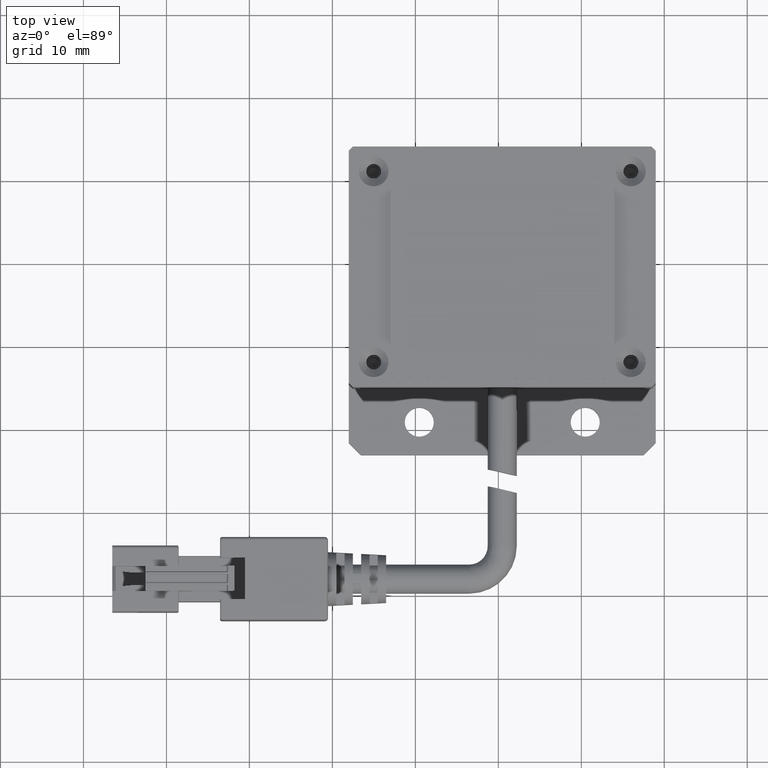
[diagram: clean part render]
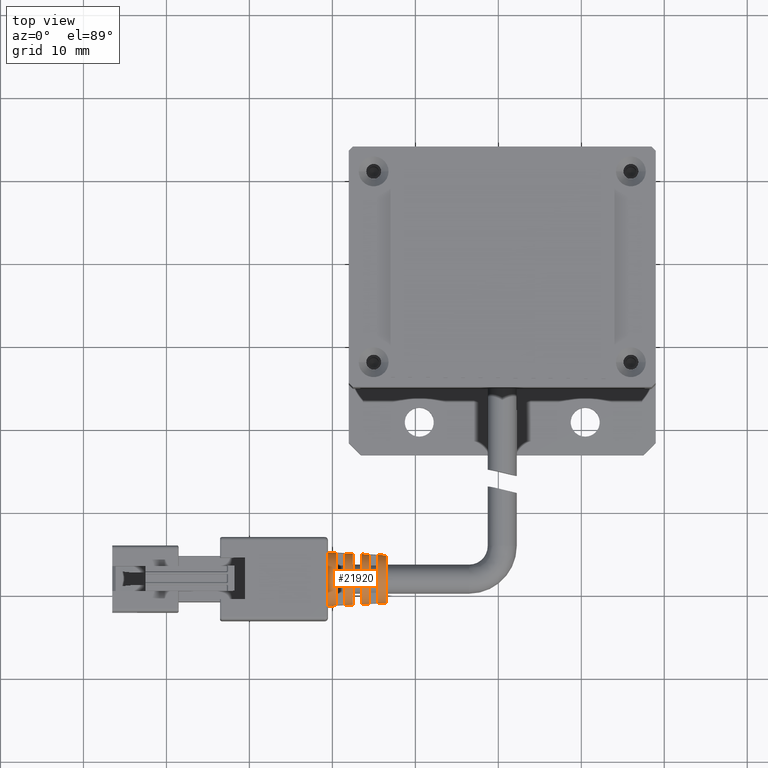
[diagram: same view with one face highlighted and labeled with its STEP entity id]
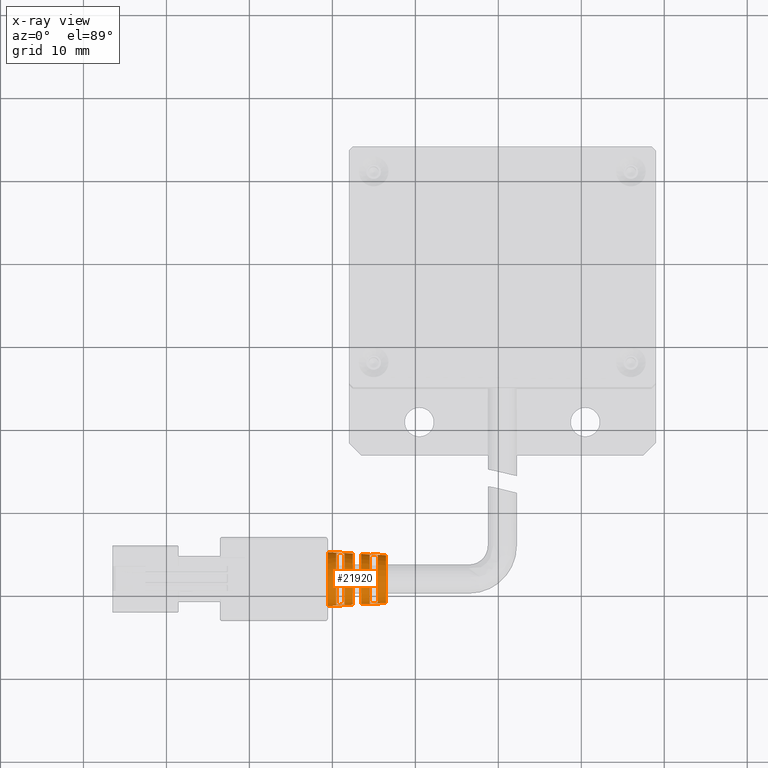
[diagram: x-ray of the same camera — body ghosted, the highlighted face saturated]
A machine part, top view. The second image highlights one B-rep face of the part: STEP entity #21920.
The next image is the same camera in x-ray: the body ghosted, the highlighted face saturated — about 0% of this face is hidden behind the body in this view.
In plain terms, the highlighted conical surface has half-angle 3 deg.
Its self-contained STEP definition (entity closure, byte-faithful):
#56 = AXIS2_PLACEMENT_3D ( 'NONE', #21622, #21542, #19377 ) ;
#155 = CARTESIAN_POINT ( 'NONE',  ( -20.52940053432780200, -34.80364642994796000, 3.999999999983631300 ) ) ;
#263 = ORIENTED_EDGE ( 'NONE', *, *, #4382, .T. ) ;
#307 = ORIENTED_EDGE ( 'NONE', *, *, #11392, .T. ) ;
#885 = CARTESIAN_POINT ( 'NONE',  ( -18.52940053454562600, -38.05364642993505700, 3.999999999983630400 ) ) ;
#931 = EDGE_CURVE ( 'NONE', #14083, #19856, #18369, .T. ) ;
#947 = CARTESIAN_POINT ( 'NONE',  ( -19.19606691330625700, -41.17665669055632100, 4.599999999983630500 ) ) ;
#1091 = EDGE_CURVE ( 'NONE', #15971, #14452, #26383, .T. ) ;
#1303 = EDGE_LOOP ( 'NONE', ( #13616, #10369, #3724, #22207 ) ) ;
#1477 = EDGE_CURVE ( 'NONE', #14463, #13560, #5836, .T. ) ;
#1509 = VECTOR ( 'NONE', #22633, 1000.000000000000200 ) ;
#1877 = CARTESIAN_POINT ( 'NONE',  ( -20.52940053432780200, -38.05364642993505700, 3.999999999983630400 ) ) ;
#2147 = CIRCLE ( 'NONE', #6506, 3.249999999999010600 ) ;
#2165 = EDGE_CURVE ( 'NONE', #15971, #14463, #15660, .T. ) ;
#2215 = DIRECTION ( 'NONE',  ( -0.9986295347545816000, 0.05233595624279531500, 1.094872672590912000E-017 ) ) ;
#2322 = ORIENTED_EDGE ( 'NONE', *, *, #14025, .T. ) ;
#2340 = CIRCLE ( 'NONE', #16407, 3.092776662151075500 ) ;
#2394 = CARTESIAN_POINT ( 'NONE',  ( -17.19606688121181600, -38.65364642993505800, 7.016210776912242200 ) ) ;
#2400 = EDGE_CURVE ( 'NONE', #8647, #8344, #26564, .T. ) ;
#2436 = AXIS2_PLACEMENT_3D ( 'NONE', #3806, #18164, #5891 ) ;
#2690 = AXIS2_PLACEMENT_3D ( 'NONE', #18407, #6139, #20473 ) ;
#2692 = CARTESIAN_POINT ( 'NONE',  ( -18.52940053455040100, -41.14107014083579400, 4.599999999983630500 ) ) ;
#2833 = CARTESIAN_POINT ( 'NONE',  ( -20.52940053455517600, -38.05364642993505700, 3.999999999983630400 ) ) ;
#2896 = B_SPLINE_CURVE_WITH_KNOTS ( 'NONE', 3,
 ( #12936, #8828, #4793, #19129 ),
 .UNSPECIFIED., .F., .F.,
 ( 4, 4 ),
 ( 4.709287019939731200E-016, 0.001001431039896518900 ),
 .UNSPECIFIED. ) ;
#2954 = DIRECTION ( 'NONE',  ( 0.0000000000000000000, -1.000000000000000000, 8.273235679558057500E-016 ) ) ;
#3128 = ORIENTED_EDGE ( 'NONE', *, *, #23431, .T. ) ;
#3129 = EDGE_CURVE ( 'NONE', #8981, #10240, #23059, .T. ) ;
#3265 = CARTESIAN_POINT ( 'NONE',  ( -17.52940053456927300, -38.05364642993505700, 3.999999999983630400 ) ) ;
#3446 = CARTESIAN_POINT ( 'NONE',  ( -17.19606688121181600, -37.45364642993506300, 7.016210776912242200 ) ) ;
#3488 = VERTEX_POINT ( 'NONE', #21882 ) ;
#3724 = ORIENTED_EDGE ( 'NONE', *, *, #20819, .T. ) ;
#3806 = CARTESIAN_POINT ( 'NONE',  ( -14.52940053458337200, -38.05364642993505700, 3.999999999983630400 ) ) ;
#4140 = LINE ( 'NONE', #155, #9613 ) ;
#4184 = ORIENTED_EDGE ( 'NONE', *, *, #8004, .T. ) ;
#4365 = CARTESIAN_POINT ( 'NONE',  ( -16.86273354202424100, -38.65364642993505800, 6.998397299985025900 ) ) ;
#4382 = EDGE_CURVE ( 'NONE', #19856, #25151, #13552, .T. ) ;
#4565 = VECTOR ( 'NONE', #7799, 1000.000000000000200 ) ;
#4793 = CARTESIAN_POINT ( 'NONE',  ( -14.86273350399157200, -35.16221848270946300, 4.599999999983629600 ) ) ;
#4908 = DIRECTION ( 'NONE',  ( 0.0000000000000000000, -1.000000000000000000, 0.0000000000000000000 ) ) ;
#5132 = CARTESIAN_POINT ( 'NONE',  ( -16.52940053453607700, -38.05364642993505700, 3.999999999983630400 ) ) ;
#5341 = DIRECTION ( 'NONE',  ( 0.0000000000000000000, -1.000000000000000000, 0.0000000000000000000 ) ) ;
#5534 = CARTESIAN_POINT ( 'NONE',  ( -16.52940053454563000, -37.45364642993506300, 6.980577619155053700 ) ) ;
#5587 = CARTESIAN_POINT ( 'NONE',  ( -15.19606684410781700, -40.96291343481343700, 4.599999999983629600 ) ) ;
#5764 = ORIENTED_EDGE ( 'NONE', *, *, #24122, .T. ) ;
#5836 = B_SPLINE_CURVE_WITH_KNOTS ( 'NONE', 3,
 ( #8599, #2394, #4365, #22920 ),
 .UNSPECIFIED., .F., .F.,
 ( 4, 4 ),
 ( 1.407150810064509900E-015, 0.001001426938980520000 ),
 .UNSPECIFIED. ) ;
#5891 = DIRECTION ( 'NONE',  ( 0.0000000000000000000, -1.000000000000000000, 0.0000000000000000000 ) ) ;
#6139 = DIRECTION ( 'NONE',  ( -1.000000000000000000, -6.162975822039154700E-033, -5.345529420184391300E-049 ) ) ;
#6194 = B_SPLINE_CURVE_WITH_KNOTS ( 'NONE', 3,
 ( #8274, #22570, #24653, #12349 ),
 .UNSPECIFIED., .F., .F.,
 ( 4, 4 ),
 ( 2.341740480690032800E-015, 0.001001423258043091700 ),
 .UNSPECIFIED. ) ;
#6249 = CARTESIAN_POINT ( 'NONE',  ( -20.52940053432780200, -34.80364642994796000, 3.999999999983631300 ) ) ;
#6506 = AXIS2_PLACEMENT_3D ( 'NONE', #2833, #17160, #4908 ) ;
#6510 = FACE_OUTER_BOUND ( 'NONE', #19061, .T. ) ;
#6742 = VERTEX_POINT ( 'NONE', #25114 ) ;
#6995 = CARTESIAN_POINT ( 'NONE',  ( -20.52940053455517600, -41.30364642993406900, 3.999999999983630400 ) ) ;
#7025 = ORIENTED_EDGE ( 'NONE', *, *, #10763, .T. ) ;
#7031 = CIRCLE ( 'NONE', #18666, 2.883145545018506200 ) ;
#7208 = DIRECTION ( 'NONE',  ( 0.0000000000000000000, -1.000000000000000000, -8.558452326718922600E-016 ) ) ;
#7224 = B_SPLINE_CURVE_WITH_KNOTS ( 'NONE', 3,
 ( #21975, #7690, #5587, #9718 ),
 .UNSPECIFIED., .F., .F.,
 ( 4, 4 ),
 ( 2.821323884305459600E-015, 0.001001431039903066600 ),
 .UNSPECIFIED. ) ;
#7270 = CARTESIAN_POINT ( 'NONE',  ( -18.52940053454754800, -34.96622271903446900, 4.599999999983630500 ) ) ;
#7300 = AXIS2_PLACEMENT_3D ( 'NONE', #1877, #22306, #10147 ) ;
#7480 = ORIENTED_EDGE ( 'NONE', *, *, #21338, .T. ) ;
#7690 = CARTESIAN_POINT ( 'NONE',  ( -14.86273350399157800, -40.94507437716065100, 4.599999999983629600 ) ) ;
#7799 = DIRECTION ( 'NONE',  ( -0.9986295347545816000, -0.05233595624279531500, -4.539420596603597400E-018 ) ) ;
#7895 = EDGE_CURVE ( 'NONE', #25151, #25237, #2340, .T. ) ;
#8004 = EDGE_CURVE ( 'NONE', #26262, #25952, #7224, .T. ) ;
#8274 = CARTESIAN_POINT ( 'NONE',  ( -19.52940053456699900, -34.91285098769622400, 4.599999999983631400 ) ) ;
#8344 = VERTEX_POINT ( 'NONE', #15050 ) ;
#8599 = CARTESIAN_POINT ( 'NONE',  ( -17.52940053456222500, -38.65364642993505800, 7.034018372034805300 ) ) ;
#8647 = VERTEX_POINT ( 'NONE', #22295 ) ;
#8665 = CARTESIAN_POINT ( 'NONE',  ( -17.52940053456927300, -34.96086976778398300, 3.999999999983631300 ) ) ;
#8828 = CARTESIAN_POINT ( 'NONE',  ( -15.19606684410781500, -35.14437942505667700, 4.599999999983630500 ) ) ;
#8981 = VERTEX_POINT ( 'NONE', #7270 ) ;
#9053 = CARTESIAN_POINT ( 'NONE',  ( -17.52940053456222500, -38.65364642993505800, 7.034018372034805300 ) ) ;
#9118 = CARTESIAN_POINT ( 'NONE',  ( -18.86273357489992400, -41.15886620670015400, 4.599999999983630500 ) ) ;
#9277 = DIRECTION ( 'NONE',  ( -1.000000000000000000, -6.162975822039154700E-033, -5.345529420184391300E-049 ) ) ;
#9613 = VECTOR ( 'NONE', #2215, 1000.000000000000200 ) ;
#9718 = CARTESIAN_POINT ( 'NONE',  ( -15.52940053455882300, -40.98074594251322400, 4.599999999983629600 ) ) ;
#9908 = VECTOR ( 'NONE', #19851, 1000.000000000000200 ) ;
#10002 = CARTESIAN_POINT ( 'NONE',  ( -20.52940053432780200, -41.30364642992215400, 3.999999999983630400 ) ) ;
#10007 = VERTEX_POINT ( 'NONE', #22313 ) ;
#10147 = DIRECTION ( 'NONE',  ( 0.0000000000000000000, -1.000000000000000000, 0.0000000000000000000 ) ) ;
#10240 = VERTEX_POINT ( 'NONE', #2692 ) ;
#10276 = CARTESIAN_POINT ( 'NONE',  ( -17.52940053456645600, -37.45364642993506300, 7.034018372035030900 ) ) ;
#10369 = ORIENTED_EDGE ( 'NONE', *, *, #2400, .T. ) ;
#10504 = AXIS2_PLACEMENT_3D ( 'NONE', #5132, #19457, #7208 ) ;
#10676 = B_SPLINE_CURVE_WITH_KNOTS ( 'NONE', 3,
 ( #25527, #9118, #947, #15280 ),
 .UNSPECIFIED., .F., .F.,
 ( 4, 4 ),
 ( 9.449387654586576900E-016, 0.001001423258045926400 ),
 .UNSPECIFIED. ) ;
#10763 = EDGE_CURVE ( 'NONE', #3488, #12827, #2896, .T. ) ;
#11041 = ORIENTED_EDGE ( 'NONE', *, *, #7895, .T. ) ;
#11392 = EDGE_CURVE ( 'NONE', #25952, #3488, #22635, .T. ) ;
#11445 = CARTESIAN_POINT ( 'NONE',  ( -13.52940053455017600, -38.05364642993505700, 3.999999999983630400 ) ) ;
#11508 = ORIENTED_EDGE ( 'NONE', *, *, #24273, .T. ) ;
#11762 = CARTESIAN_POINT ( 'NONE',  ( -15.52940053455972500, -38.05364642993505700, 3.999999999983630400 ) ) ;
#12349 = CARTESIAN_POINT ( 'NONE',  ( -18.52940053454754800, -34.96622271903446900, 4.599999999983630500 ) ) ;
#12494 = ORIENTED_EDGE ( 'NONE', *, *, #17153, .F. ) ;
#12607 = CARTESIAN_POINT ( 'NONE',  ( -16.52940053453607700, -35.01327754706861800, 3.999999999983631300 ) ) ;
#12655 = ORIENTED_EDGE ( 'NONE', *, *, #2165, .T. ) ;
#12723 = CARTESIAN_POINT ( 'NONE',  ( -16.52940053453988200, -38.65364642993505800, 6.980577619154746400 ) ) ;
#12827 = VERTEX_POINT ( 'NONE', #16250 ) ;
#12936 = CARTESIAN_POINT ( 'NONE',  ( -15.52940053455745200, -35.12654691735696100, 4.599999999983630500 ) ) ;
#13255 = FACE_BOUND ( 'NONE', #1303, .T. ) ;
#13544 = DIRECTION ( 'NONE',  ( 0.0000000000000000000, -1.000000000000000000, 0.0000000000000000000 ) ) ;
#13552 = B_SPLINE_CURVE_WITH_KNOTS ( 'NONE', 3,
 ( #5534, #17816, #3446, #19864 ),
 .UNSPECIFIED., .F., .F.,
 ( 4, 4 ),
 ( 1.952605237728863600E-015, 0.001001426938979543600 ),
 .UNSPECIFIED. ) ;
#13560 = VERTEX_POINT ( 'NONE', #12723 ) ;
#13616 = ORIENTED_EDGE ( 'NONE', *, *, #18751, .T. ) ;
#13847 = DIRECTION ( 'NONE',  ( 0.0000000000000000000, -1.000000000000000000, 0.0000000000000000000 ) ) ;
#14025 = EDGE_CURVE ( 'NONE', #25237, #25845, #4140, .T. ) ;
#14083 = VERTEX_POINT ( 'NONE', #12607 ) ;
#14452 = VERTEX_POINT ( 'NONE', #6995 ) ;
#14463 = VERTEX_POINT ( 'NONE', #9053 ) ;
#14655 = CARTESIAN_POINT ( 'NONE',  ( -17.52940053456927300, -41.14642309208613100, 3.999999999983630400 ) ) ;
#15050 = CARTESIAN_POINT ( 'NONE',  ( -19.52940053456699900, -34.91285098769622400, 4.599999999983631400 ) ) ;
#15226 = DIRECTION ( 'NONE',  ( 1.000000000000000000, 6.162975822039154700E-033, 5.345529420184391300E-049 ) ) ;
#15280 = CARTESIAN_POINT ( 'NONE',  ( -19.52940053457408000, -41.19444187217425900, 4.599999999983630500 ) ) ;
#15634 = CARTESIAN_POINT ( 'NONE',  ( -20.52940053432780200, -41.30364642992215400, 3.999999999983630400 ) ) ;
#15660 = CIRCLE ( 'NONE', #20193, 3.092776662151075500 ) ;
#15971 = VERTEX_POINT ( 'NONE', #14655 ) ;
#16250 = CARTESIAN_POINT ( 'NONE',  ( -14.52940053457772900, -35.18006446315118300, 4.599999999983629600 ) ) ;
#16407 = AXIS2_PLACEMENT_3D ( 'NONE', #21565, #9277, #23643 ) ;
#17153 = EDGE_CURVE ( 'NONE', #20139, #10007, #20810, .T. ) ;
#17160 = DIRECTION ( 'NONE',  ( 1.000000000000000000, 6.162975822039154700E-033, 5.345529420184391300E-049 ) ) ;
#17242 = CARTESIAN_POINT ( 'NONE',  ( -16.52940053454563000, -37.45364642993506300, 6.980577619155053700 ) ) ;
#17416 = FACE_BOUND ( 'NONE', #19791, .T. ) ;
#17626 = DIRECTION ( 'NONE',  ( -1.000000000000000000, -6.162975822039154700E-033, -5.345529420184391300E-049 ) ) ;
#17816 = CARTESIAN_POINT ( 'NONE',  ( -16.86273354202423700, -37.45364642993506300, 6.998397299985025900 ) ) ;
#17980 = CIRCLE ( 'NONE', #10504, 3.040368882866441200 ) ;
#18164 = DIRECTION ( 'NONE',  ( 1.000000000000000000, 6.162975822039154700E-033, 5.345529420184391300E-049 ) ) ;
#18369 = CIRCLE ( 'NONE', #56, 3.040368882866441200 ) ;
#18407 = CARTESIAN_POINT ( 'NONE',  ( -19.52940053457882300, -38.05364642993505700, 3.999999999983630400 ) ) ;
#18666 = AXIS2_PLACEMENT_3D ( 'NONE', #11445, #25837, #13544 ) ;
#18751 = EDGE_CURVE ( 'NONE', #10240, #8647, #10676, .T. ) ;
#18939 = CARTESIAN_POINT ( 'NONE',  ( -20.52940053455517600, -34.80364642993604500, 3.999999999983631300 ) ) ;
#19019 = AXIS2_PLACEMENT_3D ( 'NONE', #11762, #26168, #13847 ) ;
#19061 = EDGE_LOOP ( 'NONE', ( #3128, #5764, #22707, #263, #11041, #2322, #11508, #19400, #12655, #24056, #21154, #12494 ) ) ;
#19129 = CARTESIAN_POINT ( 'NONE',  ( -14.52940053457772900, -35.18006446315118300, 4.599999999983629600 ) ) ;
#19278 = CARTESIAN_POINT ( 'NONE',  ( -15.52940053455882300, -40.98074594251322400, 4.599999999983629600 ) ) ;
#19377 = DIRECTION ( 'NONE',  ( 0.0000000000000000000, -1.000000000000000000, 8.558452326718922600E-016 ) ) ;
#19400 = ORIENTED_EDGE ( 'NONE', *, *, #1091, .F. ) ;
#19457 = DIRECTION ( 'NONE',  ( 1.000000000000000000, 6.162975822039154700E-033, 5.345529420184391300E-049 ) ) ;
#19718 = CIRCLE ( 'NONE', #2436, 2.935553324303140400 ) ;
#19791 = EDGE_LOOP ( 'NONE', ( #4184, #307, #7025, #7480 ) ) ;
#19851 = DIRECTION ( 'NONE',  ( -0.9986295347545816000, -0.05233595624279531500, -4.539420596603597400E-018 ) ) ;
#19856 = VERTEX_POINT ( 'NONE', #17242 ) ;
#19864 = CARTESIAN_POINT ( 'NONE',  ( -17.52940053456645600, -37.45364642993506300, 7.034018372035030900 ) ) ;
#20139 = VERTEX_POINT ( 'NONE', #26303 ) ;
#20193 = AXIS2_PLACEMENT_3D ( 'NONE', #3265, #17626, #5341 ) ;
#20473 = DIRECTION ( 'NONE',  ( 0.0000000000000000000, -1.000000000000000000, 0.0000000000000000000 ) ) ;
#20594 = EDGE_CURVE ( 'NONE', #13560, #10007, #17980, .T. ) ;
#20810 = LINE ( 'NONE', #15634, #9908 ) ;
#20819 = EDGE_CURVE ( 'NONE', #8344, #8981, #6194, .T. ) ;
#21154 = ORIENTED_EDGE ( 'NONE', *, *, #20594, .T. ) ;
#21338 = EDGE_CURVE ( 'NONE', #12827, #26262, #19718, .T. ) ;
#21542 = DIRECTION ( 'NONE',  ( 1.000000000000000000, 6.162975822039154700E-033, 5.345529420184391300E-049 ) ) ;
#21565 = CARTESIAN_POINT ( 'NONE',  ( -17.52940053456927300, -38.05364642993505700, 3.999999999983630400 ) ) ;
#21622 = CARTESIAN_POINT ( 'NONE',  ( -16.52940053453607700, -38.05364642993505700, 3.999999999983630400 ) ) ;
#21882 = CARTESIAN_POINT ( 'NONE',  ( -15.52940053455745200, -35.12654691735696100, 4.599999999983630500 ) ) ;
#21920 = ADVANCED_FACE ( 'NONE', ( #13255, #17416, #6510 ), #25136, .T. ) ;
#21975 = CARTESIAN_POINT ( 'NONE',  ( -14.52940053456927500, -40.92722839671847600, 4.599999999983629600 ) ) ;
#22207 = ORIENTED_EDGE ( 'NONE', *, *, #3129, .T. ) ;
#22295 = CARTESIAN_POINT ( 'NONE',  ( -19.52940053457408000, -41.19444187217425900, 4.599999999983630500 ) ) ;
#22306 = DIRECTION ( 'NONE',  ( -1.000000000000000000, -6.162975822039154700E-033, -5.345529420184391300E-049 ) ) ;
#22313 = CARTESIAN_POINT ( 'NONE',  ( -16.52940053453607700, -41.09401531280149600, 3.999999999983630400 ) ) ;
#22570 = CARTESIAN_POINT ( 'NONE',  ( -19.19606691330625700, -34.93063616931379300, 4.599999999983631400 ) ) ;
#22633 = DIRECTION ( 'NONE',  ( -0.9986295347545816000, 0.05233595624279531500, 1.094872672590912000E-017 ) ) ;
#22635 = CIRCLE ( 'NONE', #19019, 2.987961103584790800 ) ;
#22689 = LINE ( 'NONE', #6249, #1509 ) ;
#22707 = ORIENTED_EDGE ( 'NONE', *, *, #931, .T. ) ;
#22745 = CARTESIAN_POINT ( 'NONE',  ( -14.52940053456927500, -40.92722839671847600, 4.599999999983629600 ) ) ;
#22920 = CARTESIAN_POINT ( 'NONE',  ( -16.52940053453988200, -38.65364642993505800, 6.980577619154746400 ) ) ;
#23059 = CIRCLE ( 'NONE', #26260, 3.145184441432725900 ) ;
#23431 = EDGE_CURVE ( 'NONE', #20139, #6742, #7031, .T. ) ;
#23643 = DIRECTION ( 'NONE',  ( 0.0000000000000000000, -1.000000000000000000, 0.0000000000000000000 ) ) ;
#24056 = ORIENTED_EDGE ( 'NONE', *, *, #1477, .T. ) ;
#24122 = EDGE_CURVE ( 'NONE', #6742, #14083, #22689, .T. ) ;
#24273 = EDGE_CURVE ( 'NONE', #25845, #14452, #2147, .T. ) ;
#24653 = CARTESIAN_POINT ( 'NONE',  ( -18.86273357489992700, -34.94842665316996000, 4.599999999983630500 ) ) ;
#25114 = CARTESIAN_POINT ( 'NONE',  ( -13.52940053455017600, -35.17050088491654900, 3.999999999983631300 ) ) ;
#25136 = CONICAL_SURFACE ( 'NONE', #7300, 3.249999999987096500, 0.05235987755968116900 ) ;
#25151 = VERTEX_POINT ( 'NONE', #10276 ) ;
#25237 = VERTEX_POINT ( 'NONE', #8665 ) ;
#25527 = CARTESIAN_POINT ( 'NONE',  ( -18.52940053455040100, -41.14107014083579400, 4.599999999983630500 ) ) ;
#25837 = DIRECTION ( 'NONE',  ( -1.000000000000000000, -6.162975822039154700E-033, -5.345529420184391300E-049 ) ) ;
#25845 = VERTEX_POINT ( 'NONE', #18939 ) ;
#25952 = VERTEX_POINT ( 'NONE', #19278 ) ;
#26168 = DIRECTION ( 'NONE',  ( -1.000000000000000000, -6.162975822039154700E-033, -5.345529420184391300E-049 ) ) ;
#26260 = AXIS2_PLACEMENT_3D ( 'NONE', #885, #15226, #2954 ) ;
#26262 = VERTEX_POINT ( 'NONE', #22745 ) ;
#26303 = CARTESIAN_POINT ( 'NONE',  ( -13.52940053455017600, -40.93679197495356400, 3.999999999983630400 ) ) ;
#26383 = LINE ( 'NONE', #10002, #4565 ) ;
#26564 = CIRCLE ( 'NONE', #2690, 3.197592220717360200 ) ;